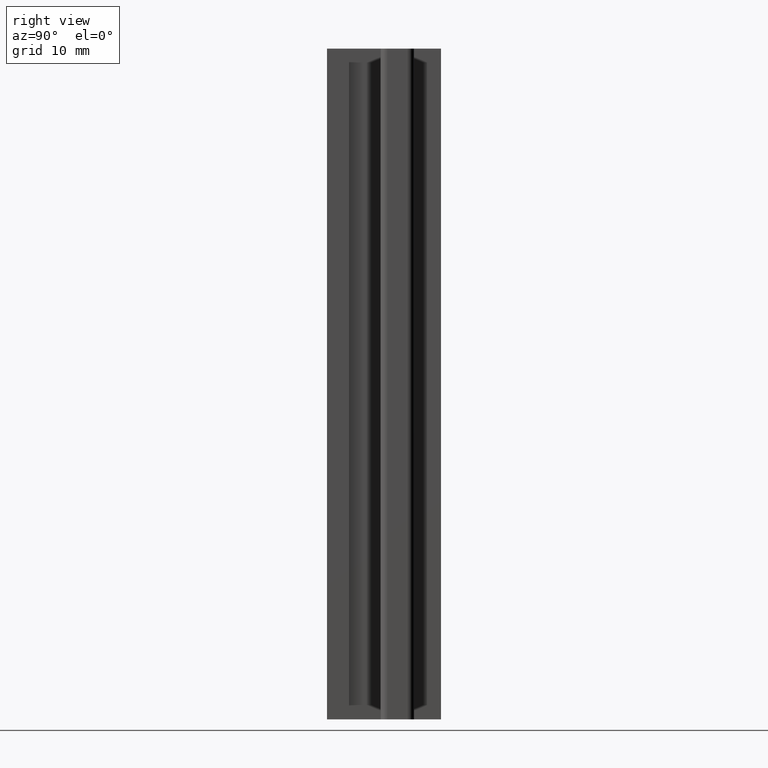
[diagram: clean part render]
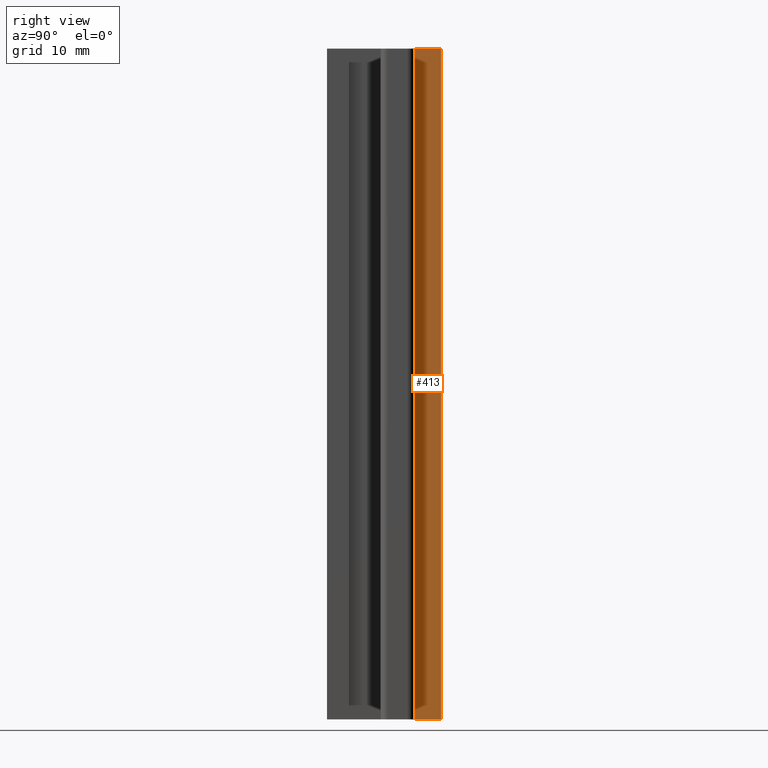
[diagram: same view with one face highlighted and labeled with its STEP entity id]
A machine part, right view. The second image highlights one B-rep face of the part: STEP entity #413.
In plain terms, the highlighted planar face has unit normal (1, 0, 0).
Its self-contained STEP definition (entity closure, byte-faithful):
#27=FACE_OUTER_BOUND('',#49,.T.);
#49=EDGE_LOOP('',(#275,#276,#277,#278));
#71=LINE('',#585,#123);
#72=LINE('',#587,#124);
#73=LINE('',#589,#125);
#74=LINE('',#590,#126);
#123=VECTOR('',#471,4.);
#124=VECTOR('',#472,100.);
#125=VECTOR('',#473,4.);
#126=VECTOR('',#474,100.);
#175=VERTEX_POINT('',#583);
#176=VERTEX_POINT('',#584);
#177=VERTEX_POINT('',#586);
#178=VERTEX_POINT('',#588);
#215=EDGE_CURVE('',#175,#176,#71,.T.);
#216=EDGE_CURVE('',#176,#177,#72,.T.);
#217=EDGE_CURVE('',#178,#177,#73,.T.);
#218=EDGE_CURVE('',#175,#178,#74,.T.);
#275=ORIENTED_EDGE('',*,*,#215,.T.);
#276=ORIENTED_EDGE('',*,*,#216,.T.);
#277=ORIENTED_EDGE('',*,*,#217,.F.);
#278=ORIENTED_EDGE('',*,*,#218,.F.);
#395=PLANE('',#437);
#413=ADVANCED_FACE('',(#27),#395,.T.);
#437=AXIS2_PLACEMENT_3D('',#582,#469,#470);
#469=DIRECTION('center_axis',(1.,0.,0.));
#470=DIRECTION('ref_axis',(0.,1.,0.));
#471=DIRECTION('',(0.,1.,0.));
#472=DIRECTION('',(0.,0.,1.));
#473=DIRECTION('',(0.,1.,0.));
#474=DIRECTION('',(0.,0.,1.));
#582=CARTESIAN_POINT('Origin',(4.,7.35,0.));
#583=CARTESIAN_POINT('',(4.,7.35,0.));
#584=CARTESIAN_POINT('',(4.,11.35,0.));
#585=CARTESIAN_POINT('',(4.,7.35,0.));
#586=CARTESIAN_POINT('',(4.,11.35,100.));
#587=CARTESIAN_POINT('',(4.,11.35,0.));
#588=CARTESIAN_POINT('',(4.,7.35,100.));
#589=CARTESIAN_POINT('',(4.,7.35,100.));
#590=CARTESIAN_POINT('',(4.,7.35,0.));